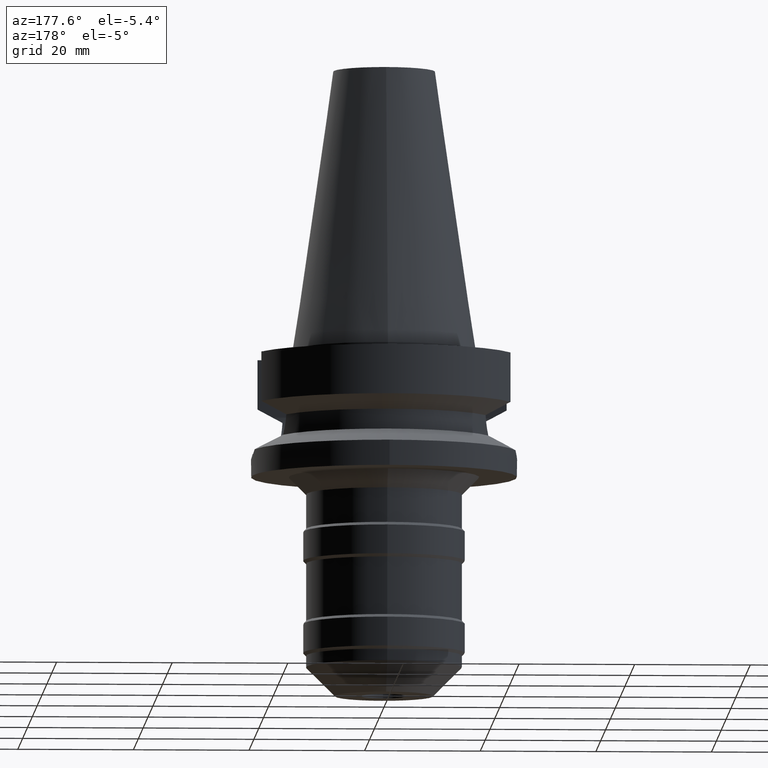
[diagram: clean part render]
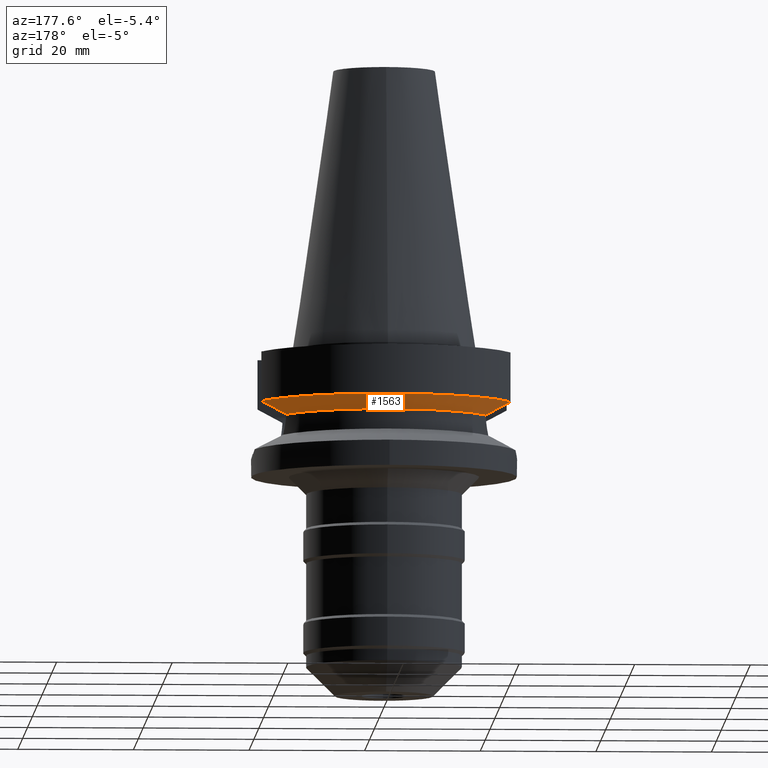
[diagram: same view with one face highlighted and labeled with its STEP entity id]
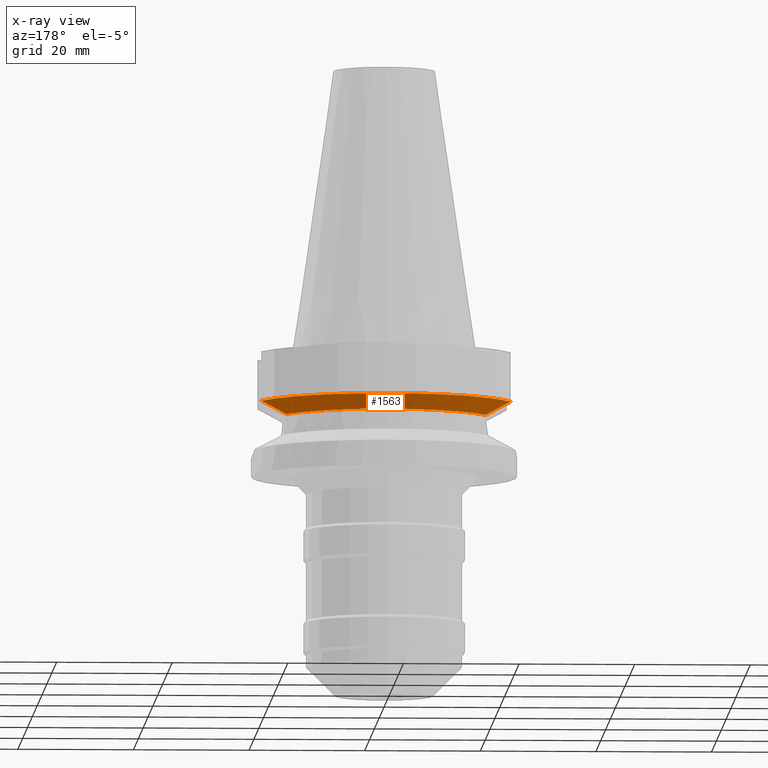
[diagram: x-ray of the same camera — body ghosted, the highlighted face saturated]
A machine part, auxiliary view. The second image highlights one B-rep face of the part: STEP entity #1563.
The next image is the same camera in x-ray: the body ghosted, the highlighted face saturated — about 0% of this face is hidden behind the body in this view.
In plain terms, the highlighted conical surface has half-angle 60 deg.
Its self-contained STEP definition (entity closure, byte-faithful):
#323=CARTESIAN_POINT('',(2.154524325238E1,8.049999577379E0,-9.567211146543E0));
#324=CARTESIAN_POINT('',(2.125934146994E1,8.049999577379E0,-9.721836180394E0));
#325=CARTESIAN_POINT('',(2.068725319578E1,8.049999439648E0,-1.003056889150E1));
#326=CARTESIAN_POINT('',(1.982793088328E1,8.050002595165E0,-1.049144078753E1));
#327=CARTESIAN_POINT('',(1.925438162563E1,8.049994318183E0,-1.079747462476E1));
#328=CARTESIAN_POINT('',(1.896738966530E1,8.049994318183E0,-1.095000099923E1));
#340=CARTESIAN_POINT('',(-1.896736186713E1,8.050001278041E0,-1.094999977537E1));
#341=CARTESIAN_POINT('',(-1.877435787930E1,8.050001278041E0,-1.105257472685E1));
#342=CARTESIAN_POINT('',(-1.838865475489E1,8.046082019594E0,-1.125795282704E1));
#343=CARTESIAN_POINT('',(-1.781119203689E1,8.028323725353E0,-1.156685917004E1));
#344=CARTESIAN_POINT('',(-1.742708427143E1,8.008477148232E0,-1.177326090740E1));
#345=CARTESIAN_POINT('',(-1.723531135276E1,7.996501749882E0,-1.187660739337E1));
#350=CARTESIAN_POINT('',(0.E0,1.093341284897E-14,-1.187660944647E1));
#351=DIRECTION('',(0.E0,0.E0,-1.E0));
#352=DIRECTION('',(-9.071218755694E-1,4.208680349747E-1,0.E0));
#353=AXIS2_PLACEMENT_3D('',#350,#351,#352);
#358=CARTESIAN_POINT('',(0.E0,1.093341284897E-14,-1.187660944647E1));
#359=DIRECTION('',(0.E0,0.E0,-1.E0));
#360=DIRECTION('',(0.E0,1.E0,0.E0));
#361=AXIS2_PLACEMENT_3D('',#358,#359,#360);
#366=CARTESIAN_POINT('',(1.723531622902E1,7.996491146276E0,-1.187660607782E1));
#367=CARTESIAN_POINT('',(1.742711751403E1,8.008468271790E0,-1.177324424046E1));
#368=CARTESIAN_POINT('',(1.781125610070E1,8.028331856440E0,-1.156681091111E1));
#369=CARTESIAN_POINT('',(1.838870194717E1,8.046085191966E0,-1.125790844374E1));
#370=CARTESIAN_POINT('',(1.877442071819E1,8.049994318183E0,-1.105255736998E1));
#371=CARTESIAN_POINT('',(1.896738966530E1,8.049994318183E0,-1.095000099923E1));
#376=CARTESIAN_POINT('',(0.E0,1.093341284897E-14,-9.567208369711E0));
#377=DIRECTION('',(0.E0,0.E0,1.E0));
#378=DIRECTION('',(9.367496997597E-1,3.500000000001E-1,0.E0));
#379=AXIS2_PLACEMENT_3D('',#376,#377,#378);
#384=CARTESIAN_POINT('',(0.E0,1.093341284897E-14,-9.567208369711E0));
#385=DIRECTION('',(0.E0,0.E0,1.E0));
#386=DIRECTION('',(0.E0,1.E0,0.E0));
#387=AXIS2_PLACEMENT_3D('',#384,#385,#386);
#392=CARTESIAN_POINT('',(-1.896736186713E1,8.050001278041E0,-1.094999977537E1));
#393=CARTESIAN_POINT('',(-1.925439178334E1,8.050001278041E0,-1.079745329145E1));
#394=CARTESIAN_POINT('',(-1.982795252621E1,8.049999682853E0,-1.049150139876E1));
#395=CARTESIAN_POINT('',(-2.068728862331E1,8.049999192954E0,-1.003062464924E1));
#396=CARTESIAN_POINT('',(-2.125933007641E1,8.050002094538E0,-9.721825273656E0));
#397=CARTESIAN_POINT('',(-2.154524231189E1,8.050002094538E0,-9.567194606710E0));
#1133=CARTESIAN_POINT('',(-1.723531135276E1,7.996501749882E0,
-1.187660739337E1));
#1253=CARTESIAN_POINT('',(1.896738966530E1,8.049994318183E0,-1.095000099923E1));
#1254=VERTEX_POINT('',#1253);
#1255=VERTEX_POINT('',#366);
#1265=VERTEX_POINT('',#1133);
#1266=VERTEX_POINT('',#340);
#1278=CARTESIAN_POINT('',(0.E0,1.9E1,-1.187660944647E1));
#1279=VERTEX_POINT('',#1278);
#1285=VERTEX_POINT('',#397);
#1286=VERTEX_POINT('',#323);
#1287=CARTESIAN_POINT('',(0.E0,2.3E1,-9.567208369711E0));
#1288=VERTEX_POINT('',#1287);
#1541=CARTESIAN_POINT('',(0.E0,1.093341284897E-14,-1.072190890809E1));
#1542=DIRECTION('',(0.E0,0.E0,1.E0));
#1543=DIRECTION('',(0.E0,1.E0,0.E0));
#1544=AXIS2_PLACEMENT_3D('',#1541,#1542,#1543);
#1545=CONICAL_SURFACE('',#1544,2.1E1,6.E1);
#1547=ORIENTED_EDGE('',*,*,#1546,.F.);
#1549=ORIENTED_EDGE('',*,*,#1548,.T.);
#1551=ORIENTED_EDGE('',*,*,#1550,.T.);
#1553=ORIENTED_EDGE('',*,*,#1552,.T.);
#1555=ORIENTED_EDGE('',*,*,#1554,.T.);
#1556=ORIENTED_EDGE('',*,*,#1530,.F.);
#1558=ORIENTED_EDGE('',*,*,#1557,.T.);
#1560=ORIENTED_EDGE('',*,*,#1559,.T.);
#1561=EDGE_LOOP('',(#1547,#1549,#1551,#1553,#1555,#1556,#1558,#1560));
#1562=FACE_OUTER_BOUND('',#1561,.F.);
#329=B_SPLINE_CURVE_WITH_KNOTS('',3,(#323,#324,#325,#326,#327,#328),
.UNSPECIFIED.,.F.,.F.,(4,1,1,4),(0.E0,3.333333333333E-1,6.666666666667E-1,1.E0),
.UNSPECIFIED.);
#346=B_SPLINE_CURVE_WITH_KNOTS('',3,(#340,#341,#342,#343,#344,#345),
.UNSPECIFIED.,.F.,.F.,(4,1,1,4),(0.E0,3.333333333333E-1,6.666666666667E-1,1.E0),
.UNSPECIFIED.);
#354=CIRCLE('',#353,1.9E1);
#362=CIRCLE('',#361,1.9E1);
#372=B_SPLINE_CURVE_WITH_KNOTS('',3,(#366,#367,#368,#369,#370,#371),
.UNSPECIFIED.,.F.,.F.,(4,1,1,4),(0.E0,3.333333333333E-1,6.666666666667E-1,1.E0),
.UNSPECIFIED.);
#380=CIRCLE('',#379,2.3E1);
#388=CIRCLE('',#387,2.3E1);
#398=B_SPLINE_CURVE_WITH_KNOTS('',3,(#392,#393,#394,#395,#396,#397),
.UNSPECIFIED.,.F.,.F.,(4,1,1,4),(0.E0,3.333333333333E-1,6.666666666667E-1,1.E0),
.UNSPECIFIED.);
#1530=EDGE_CURVE('',#1286,#1254,#329,.T.);
#1546=EDGE_CURVE('',#1266,#1285,#398,.T.);
#1548=EDGE_CURVE('',#1266,#1265,#346,.T.);
#1550=EDGE_CURVE('',#1265,#1279,#354,.T.);
#1552=EDGE_CURVE('',#1279,#1255,#362,.T.);
#1554=EDGE_CURVE('',#1255,#1254,#372,.T.);
#1557=EDGE_CURVE('',#1286,#1288,#380,.T.);
#1559=EDGE_CURVE('',#1288,#1285,#388,.T.);
#1563=ADVANCED_FACE('',(#1562),#1545,.T.);